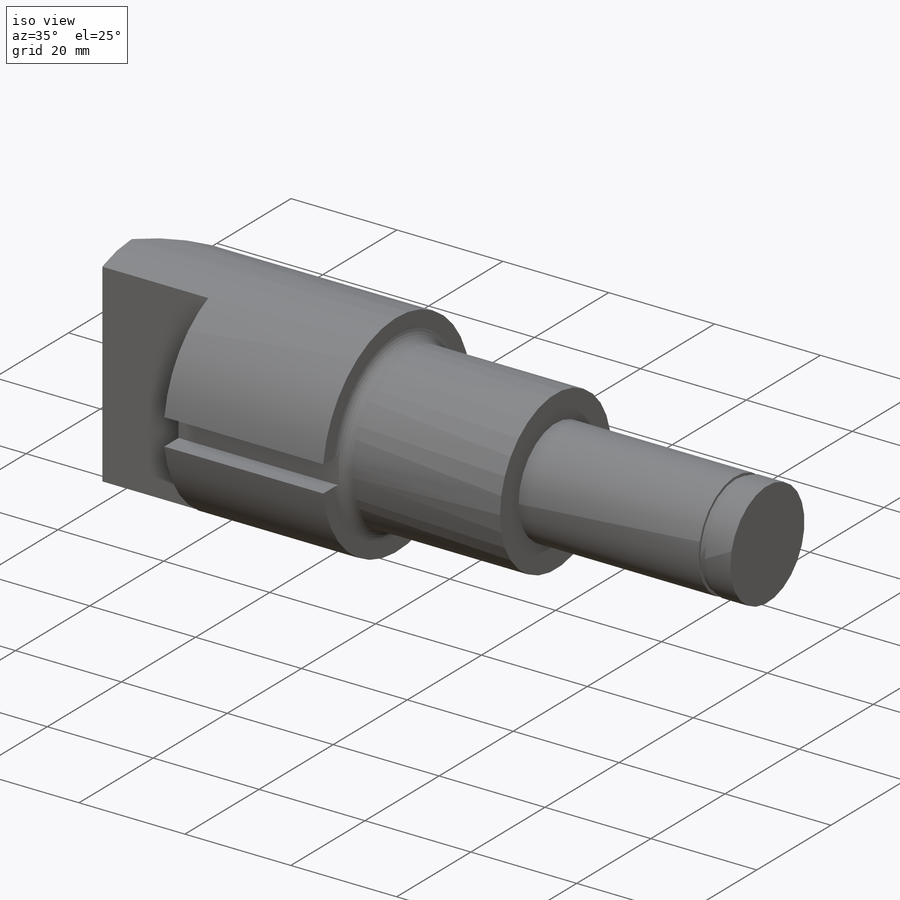
[diagram: iso view]
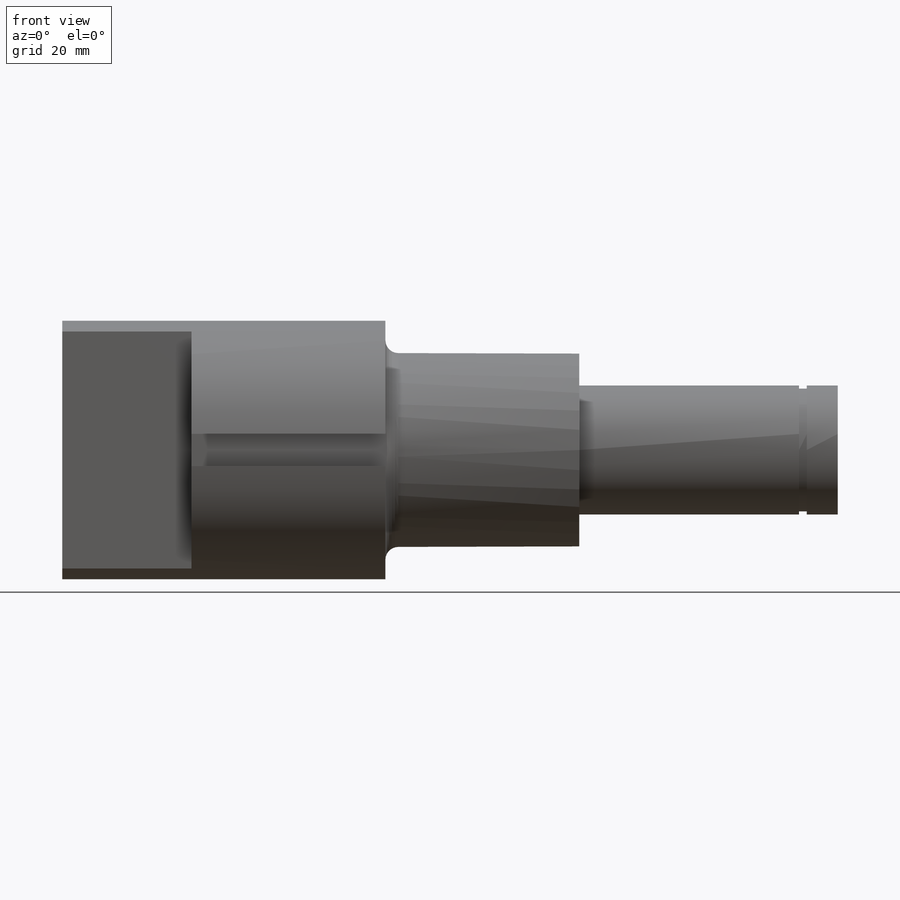
[diagram: front view]
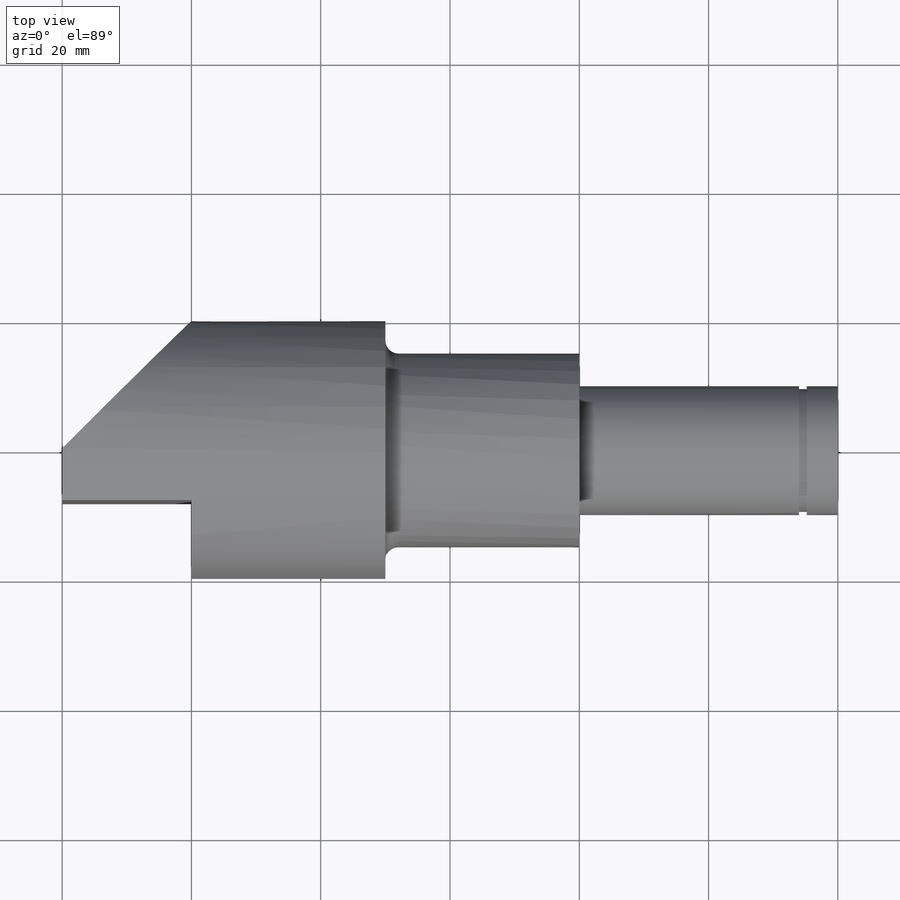
[diagram: top view]
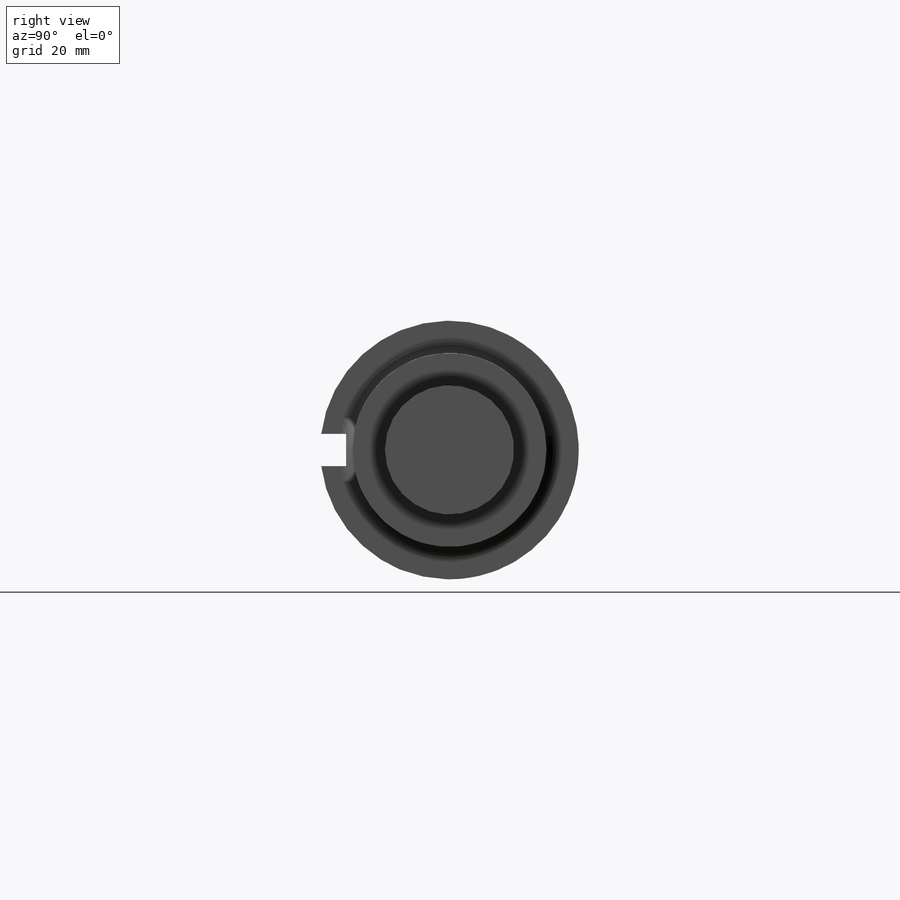
[diagram: right view]
SOLIDWORKS PART (.sldprt)
format: sldprt  version: not decoded by parser v0  size: 229,888 bytes
history: native  units: mm
features: sketch x4, plane x3, cut_extrude x3, material x1, revolve x1, fillet x1 (+13 scaffold rows collapsed)
feature tree (26):
  scaffold x13  (default folders/planes/origin — collapsed)
  material  "Material <não especificado>"
  plane  "Plano frontal"
  plane  "Plano superior"
  plane  "Plano direito"
  sketch  "Esboço1"  dims[D1=50.0mm D2=20.0mm D3=80.0mm D4=15.0mm D5=10.0mm D6=9.5mm D7=10.0mm D8=34.0mm D9=1.2mm D10=120.0mm]
  revolve  "Revolução1"  Angle=360deg
  sketch  "Esboço2"  dims[D1=8.0mm D2=20.0mm D3=30.0mm D4=20.0mm]
  cut_extrude  "Corte-extrusão1"  Depth=100mm
  sketch  "Esboço3"  dims[D1=4.0mm D2=5.0mm D3=2.5mm D4=5.0mm]
  cut_extrude  "Corte-extrusão2"  Depth=30mm
  fillet  "Filete1"  Radius=2mm
  sketch  "Esboço4"  dims[c1.D1=20.0mm c2.D1=45.0deg]
  cut_extrude  "Corte-extrusão3"  Depth=100mm
decode coverage: 9 of 9 modeling features carry decoded parameters
note: suppression state not decoded; provenance and decode notes live in map.json
